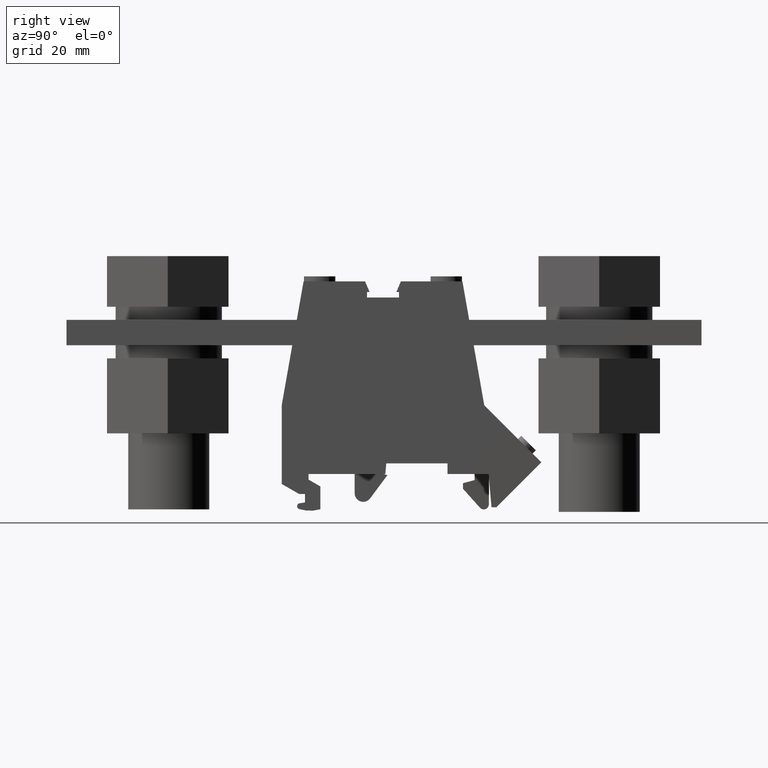
[diagram: clean part render]
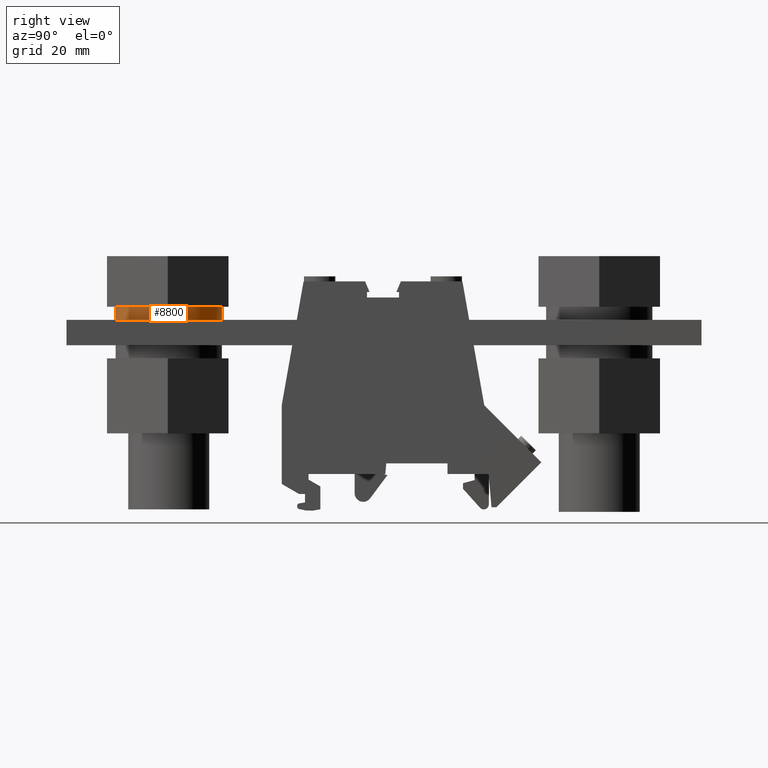
[diagram: same view with one face highlighted and labeled with its STEP entity id]
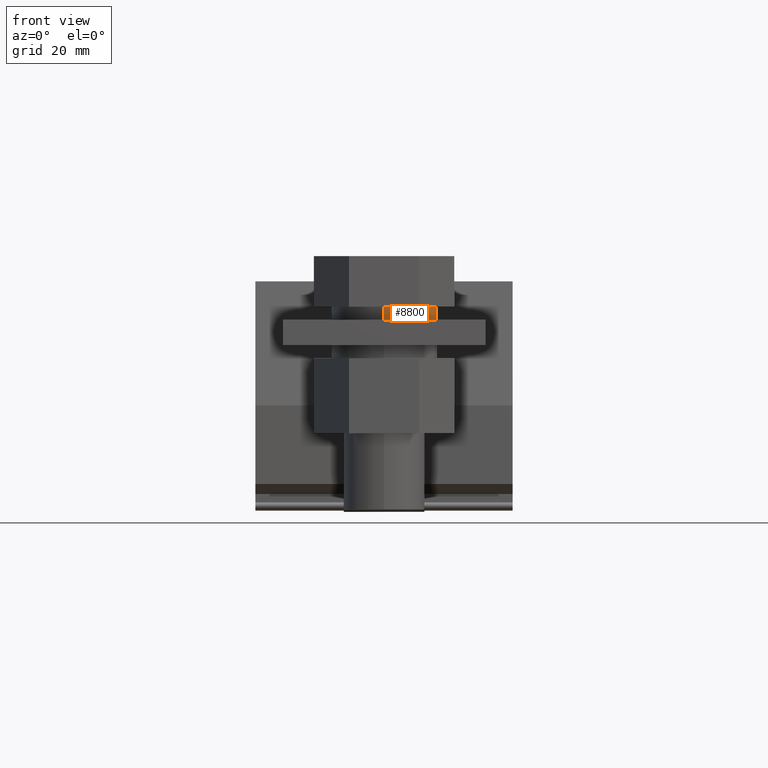
[diagram: same view with one face highlighted and labeled with its STEP entity id]
A machine part, right view. The second image highlights one B-rep face of the part: STEP entity #8800.
A second angle (front view) of the same face is appended — the face is thin or edge-on in the first view.
In plain terms, the highlighted cylindrical surface (partial cylindrical patch) has radius 10.5 mm, axis along (0, 0, -1).
Its self-contained STEP definition (entity closure, byte-faithful):
#7760=CARTESIAN_POINT('',(-282.907551201959,762.956092873311,
2.19999999999998));
#7770=DIRECTION('',(0.,-1.,0.));
#7780=DIRECTION('',(-1.,0.,-1.10754662033049E-53));
#7790=AXIS2_PLACEMENT_3D('',#7760,#7770,#7780);
#7800=CIRCLE('',#7790,10.5);
#7810=CARTESIAN_POINT('',(-293.407551201959,762.956092873311,
2.19999999999998));
#7820=VERTEX_POINT('',#7810);
#7830=CARTESIAN_POINT('',(-272.407551201959,762.956092873311,
2.19999999999998));
#7840=VERTEX_POINT('',#7830);
#7870=EDGE_CURVE('',#7840,#7820,#7800,.T.);
#8490=CARTESIAN_POINT('',(-282.907551201959,765.056092873311,
2.19999999999998));
#8500=DIRECTION('',(0.,-1.,0.));
#8510=DIRECTION('',(-1.,0.,-1.10754662033049E-53));
#8520=AXIS2_PLACEMENT_3D('',#8490,#8500,#8510);
#8530=CYLINDRICAL_SURFACE('',#8520,10.5);
#8540=CARTESIAN_POINT('',(-293.407551201959,765.056092873311,
2.19999999999998));
#8550=DIRECTION('',(0.,-1.,0.));
#8560=VECTOR('',#8550,1.);
#8570=LINE('',#8540,#8560);
#8580=CARTESIAN_POINT('',(-293.407551201959,765.556092873311,
2.19999999999998));
#8590=VERTEX_POINT('',#8580);
#8600=EDGE_CURVE('',#8590,#7820,#8570,.T.);
#8610=ORIENTED_EDGE('',*,*,#8600,.T.);
#8620=CARTESIAN_POINT('',(-282.907551201959,765.556092873311,
2.19999999999998));
#8630=DIRECTION('',(0.,-1.,0.));
#8640=DIRECTION('',(-1.,0.,-1.10754662033049E-53));
#8650=AXIS2_PLACEMENT_3D('',#8620,#8630,#8640);
#8660=CIRCLE('',#8650,10.5);
#8670=CARTESIAN_POINT('',(-272.407551201959,765.556092873311,
2.19999999999998));
#8680=VERTEX_POINT('',#8670);
#8690=EDGE_CURVE('',#8680,#8590,#8660,.T.);
#8700=ORIENTED_EDGE('',*,*,#8690,.T.);
#8710=CARTESIAN_POINT('',(-272.407551201959,765.056092873311,
2.19999999999998));
#8720=DIRECTION('',(0.,-1.,0.));
#8730=VECTOR('',#8720,1.);
#8740=LINE('',#8710,#8730);
#8750=EDGE_CURVE('',#8680,#7840,#8740,.T.);
#8760=ORIENTED_EDGE('',*,*,#8750,.F.);
#8770=ORIENTED_EDGE('',*,*,#7870,.F.);
#8780=EDGE_LOOP('',(#8770,#8760,#8700,#8610));
#8790=FACE_OUTER_BOUND('',#8780,.T.);
#8800=ADVANCED_FACE('',(#8790),#8530,.T.);